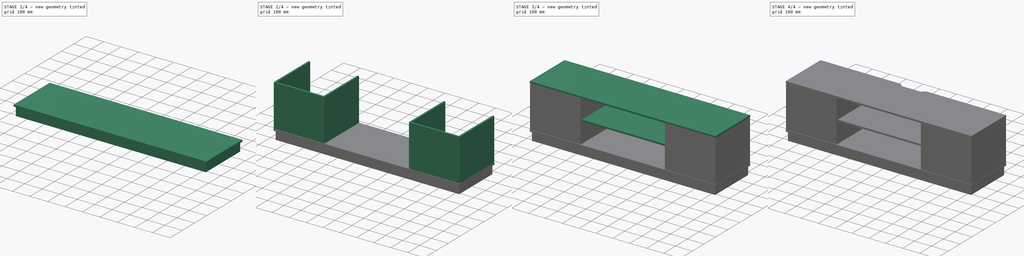
[diagram: build sequence overview — one tinted view per stage of 4, left to right]
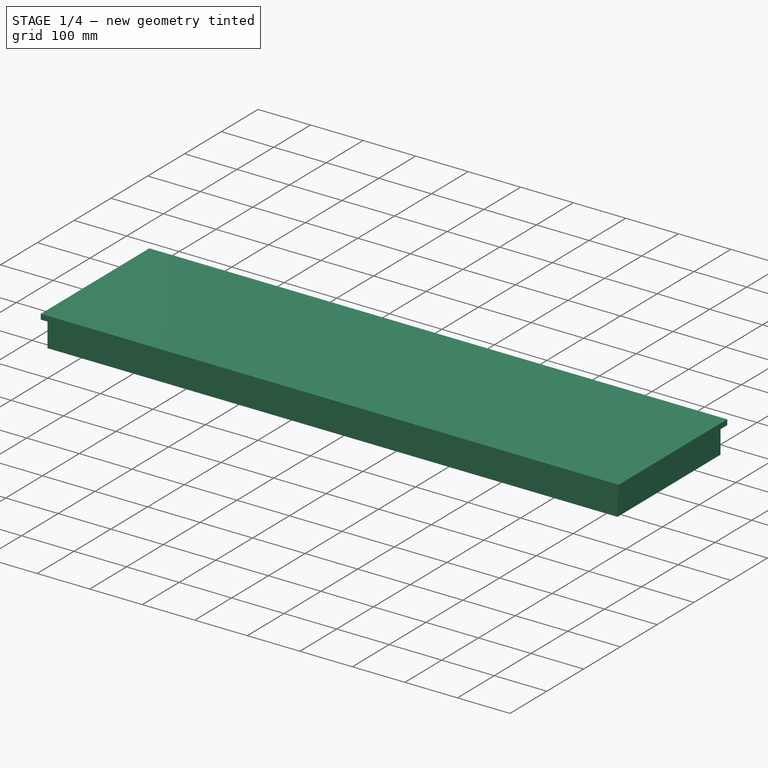
[diagram: stage 1 of 4 — iso view after this stage's code; geometry added in this stage tinted green]
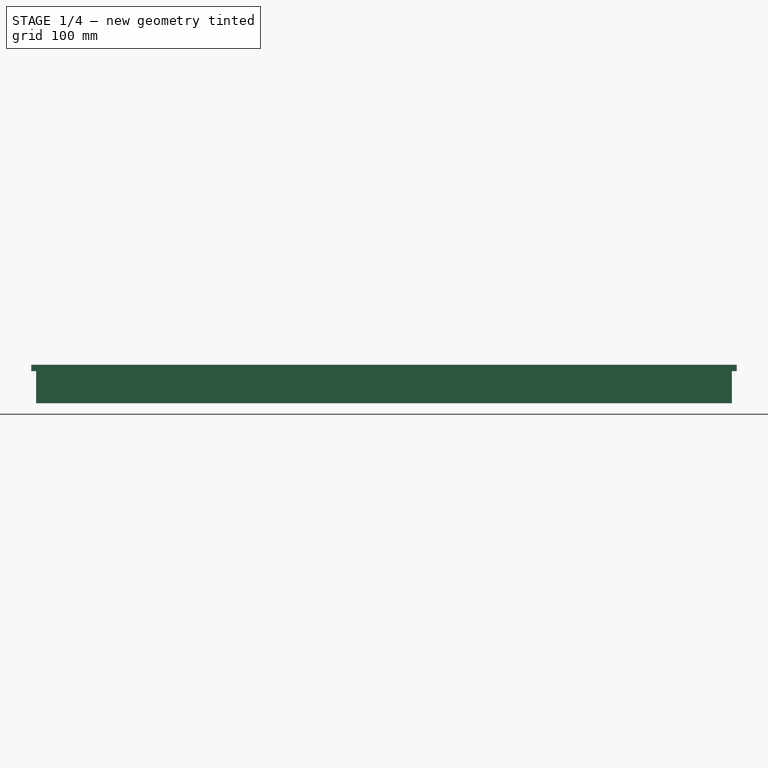
[diagram: stage 1 of 4 — front view after this stage's code; geometry added in this stage tinted green]
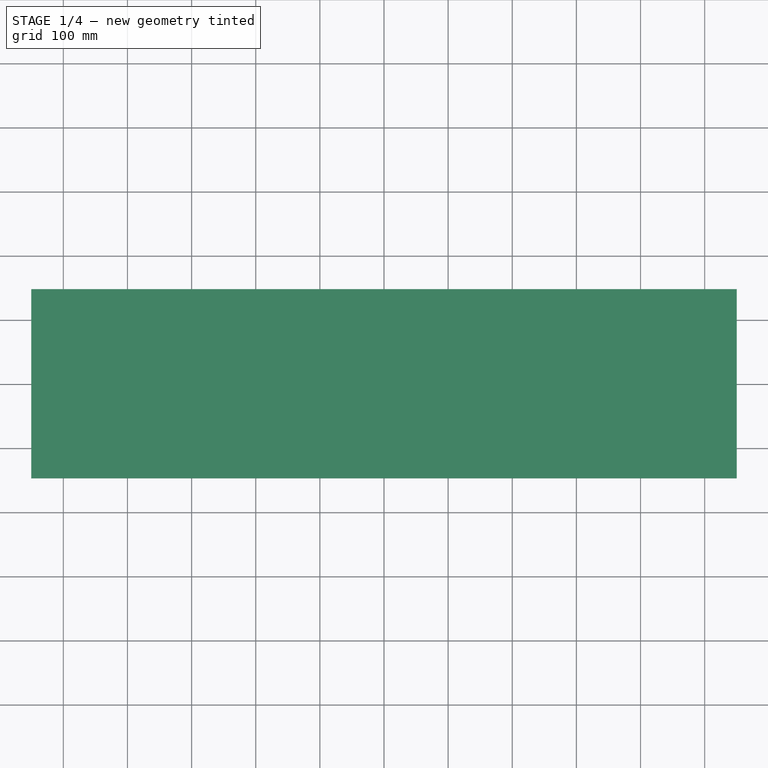
[diagram: stage 1 of 4 — top view after this stage's code; geometry added in this stage tinted green]
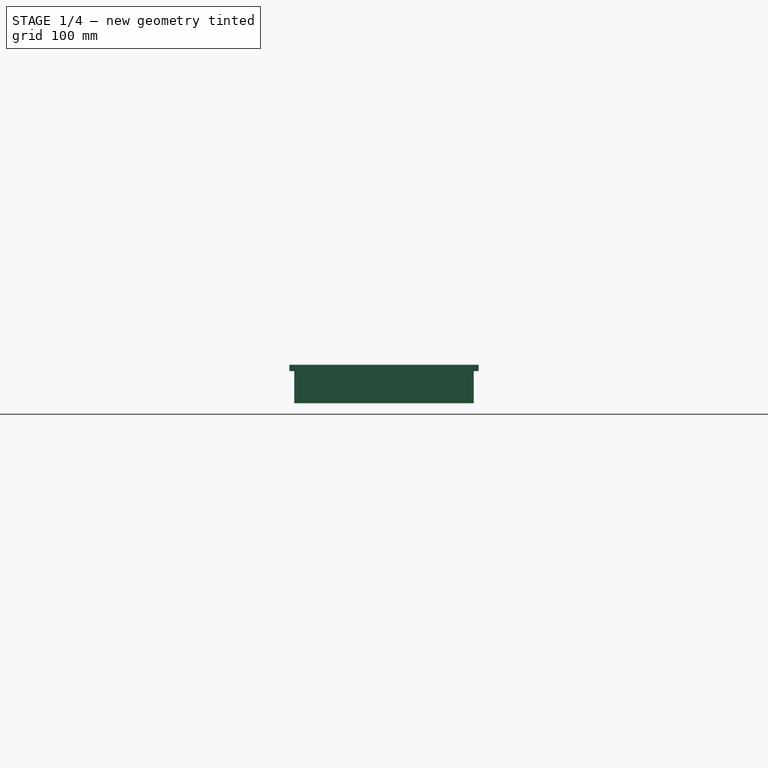
[diagram: stage 1 of 4 — right view after this stage's code; geometry added in this stage tinted green]
FCSTD DOCUMENT  (FreeCAD 1.0R39109 (Git))
Label: tvboard
License: All rights reserved
LicenseURL: https://en.wikipedia.org/wiki/All_rights_reserved
objects: Sketcher::SketchObject×9, PartDesign::Pad×8, PartDesign::Plane×1, PartDesign::Pocket×1, PartDesign::Body×1, Part::FeaturePython×1, App::Part×1
note: 48 computed .brp shape members not serialized (recipe doc carries the construction recipe); baked Part::Feature solids carry a one-line shape summary decoded from their .brp

FEATURE [Sketcher::SketchObject] Sketch
  ArcFitTolerance = 1e-06
  AttachmentSupport = -> [XY_Plane]
  FullyConstrained = true
  MakeInternals = false
  MapMode = 5
  sketch-geometry (5):
    g0: LineSegment StartX=-542.5 StartY=-140 StartZ=0 EndX=542.5 EndY=-140 EndZ=0
    g1: LineSegment StartX=542.5 StartY=-140 StartZ=0 EndX=542.5 EndY=140 EndZ=0
    g2: LineSegment StartX=542.5 StartY=140 StartZ=0 EndX=-542.5 EndY=140 EndZ=0
    g3: LineSegment StartX=-542.5 StartY=140 StartZ=0 EndX=-542.5 EndY=-140 EndZ=0
    g4: GeomPoint [constr] X=0 Y=0 Z=0
  constraints (12):
    c: Coincident(g0,g1)
    c: Coincident(g1,g2)
    c: Coincident(g2,g3)
    c: Coincident(g3,g0)
    c: Horizontal(g0)
    c: Horizontal(g2)
    c: Vertical(g1)
    c: Vertical(g3)
    c: Symmetric(g2,g0,g4)
    c: Distance(g1,g3) = 1085
    c: Distance(g0,g2) = 280
    c: Coincident(g4,g-1)
FEATURE [PartDesign::Pad] Pad
  Direction = (0,0,1)
  Length = 50
  Length2 = 10
  Profile = -> Sketch
  ReferenceAxis = -> Sketch [N_Axis]
  Refine = true
  Suppressed = false
  Type = 0
FEATURE [Sketcher::SketchObject] Sketch001
  ArcFitTolerance = 1e-06
  AttachmentSupport = -> [Pad]
  FullyConstrained = true
  MakeInternals = false
  MapMode = 5
  Placement = pos=(0,0,50) rot=(0,0,1;0rad)
  sketch-geometry (5):
    g0: LineSegment StartX=-550 StartY=-147.5 StartZ=0 EndX=550 EndY=-147.5 EndZ=0
    g1: LineSegment StartX=550 StartY=-147.5 StartZ=0 EndX=550 EndY=147.5 EndZ=0
    g2: LineSegment StartX=550 StartY=147.5 StartZ=0 EndX=-550 EndY=147.5 EndZ=0
    g3: LineSegment StartX=-550 StartY=147.5 StartZ=0 EndX=-550 EndY=-147.5 EndZ=0
    g4: GeomPoint [constr] X=0 Y=0 Z=0
  constraints (12):
    c: Coincident(g0,g1)
    c: Coincident(g1,g2)
    c: Coincident(g2,g3)
    c: Coincident(g3,g0)
    c: Horizontal(g0)
    c: Horizontal(g2)
    c: Vertical(g1)
    c: Vertical(g3)
    c: Symmetric(g2,g0,g4)
    c: Distance(g1,g3) = 1100
    c: Distance(g0,g2) = 295
    c: Coincident(g4,g-1)
FEATURE [PartDesign::Pad] Pad001
  BaseFeature = -> Pad
  Direction = (0,0,1)
  Length = 10
  Length2 = 10
  Profile = -> Sketch001
  ReferenceAxis = -> Sketch001 [N_Axis]
  Refine = true
  Suppressed = false
  Type = 0
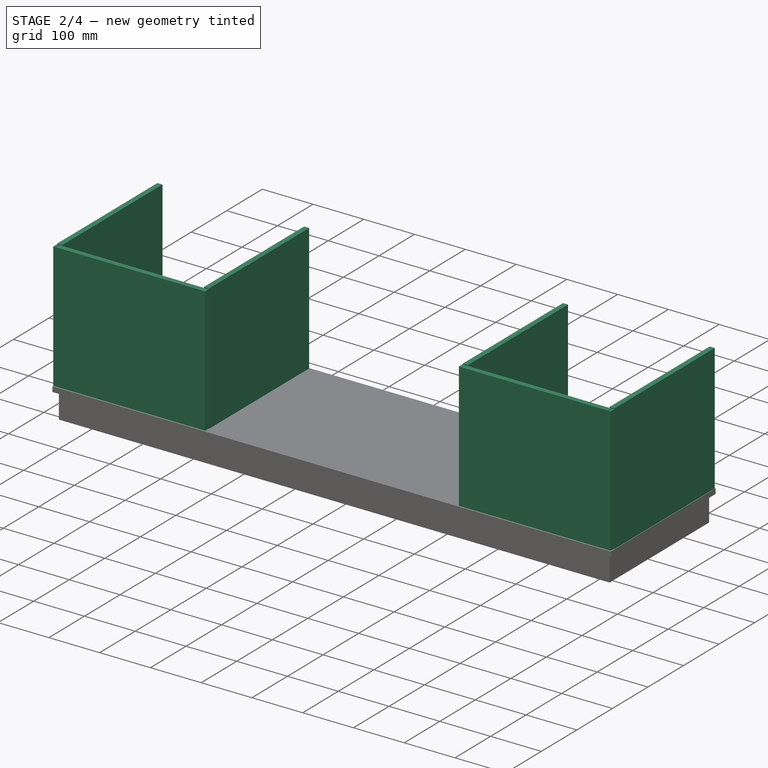
[diagram: stage 2 of 4 — iso view after this stage's code; geometry added in this stage tinted green]
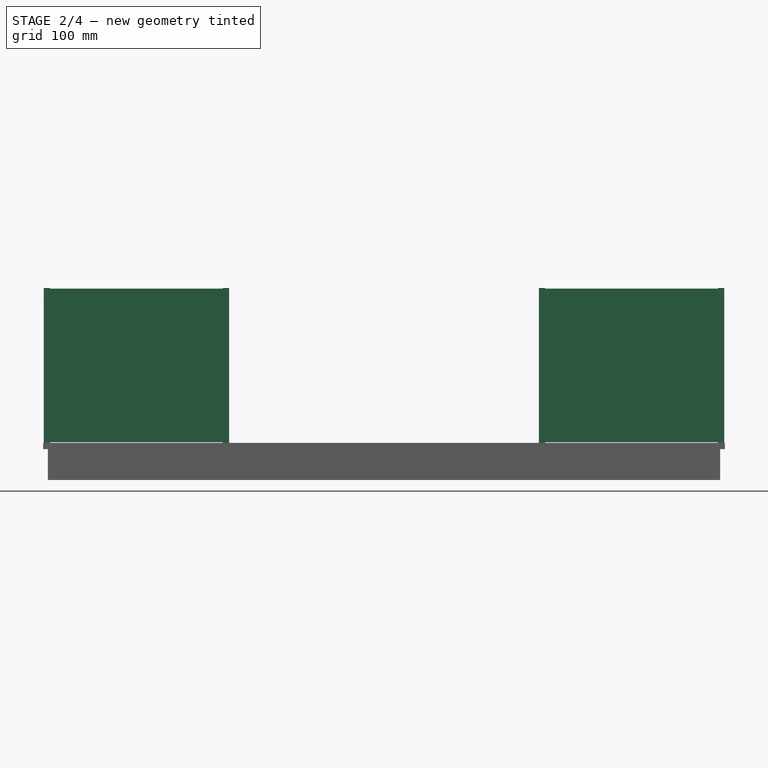
[diagram: stage 2 of 4 — front view after this stage's code; geometry added in this stage tinted green]
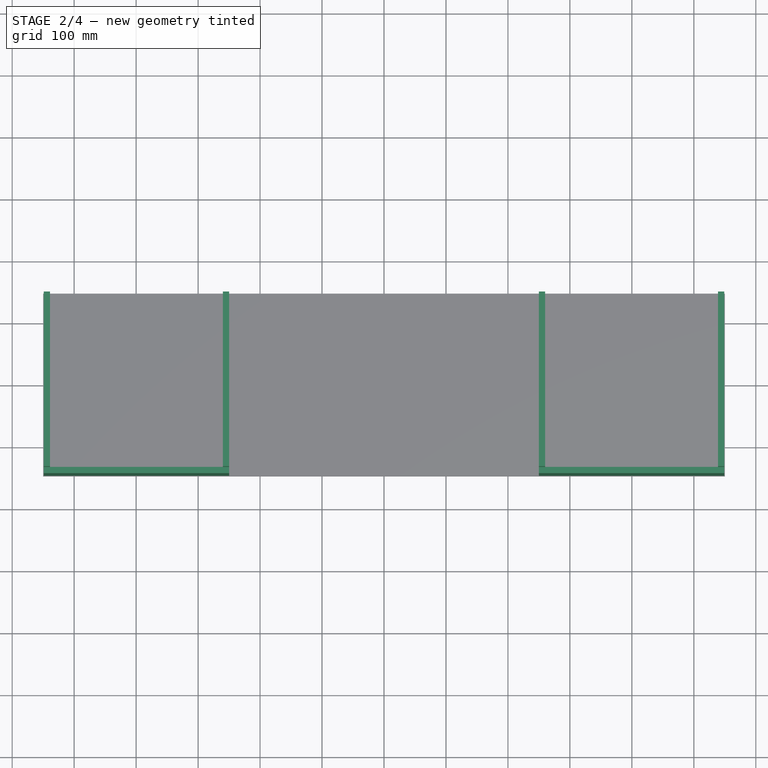
[diagram: stage 2 of 4 — top view after this stage's code; geometry added in this stage tinted green]
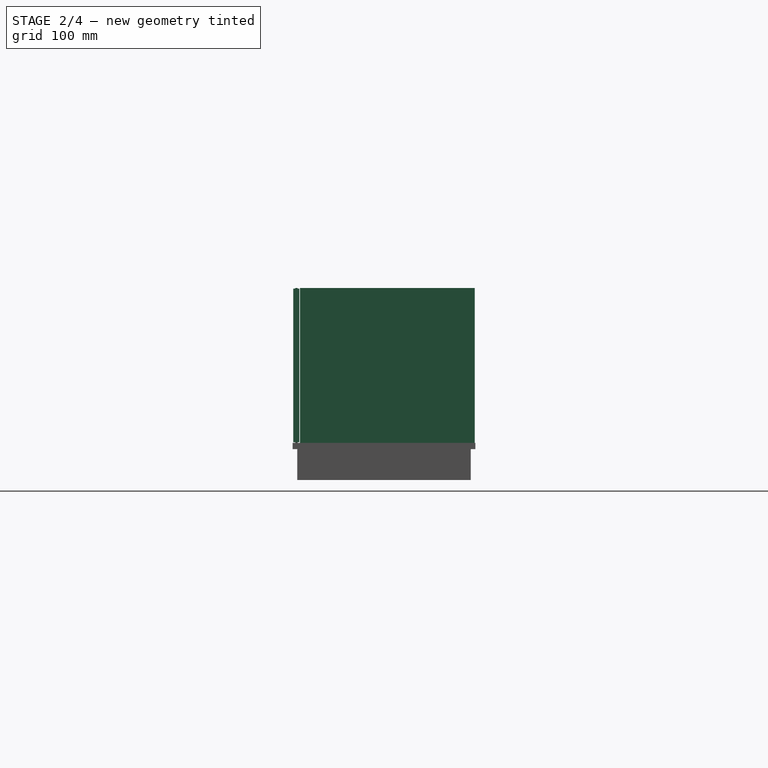
[diagram: stage 2 of 4 — right view after this stage's code; geometry added in this stage tinted green]
FEATURE [Sketcher::SketchObject] Sketch002
  ArcFitTolerance = 1e-06
  AttachmentSupport = -> [Pad001]
  ExternalGeometry = -> [Pad001]
  FullyConstrained = false
  MakeInternals = false
  MapMode = 5
  Placement = pos=(0,0,60) rot=(0,0,1;0rad)
  sketch-geometry (16):
    g0: LineSegment StartX=-549 StartY=146.5 StartZ=0 EndX=-549 EndY=-135.5 EndZ=0
    g1: LineSegment StartX=-549 StartY=-135.5 StartZ=0 EndX=-539 EndY=-135.5 EndZ=0
    g2: LineSegment StartX=-539 StartY=-135.5 StartZ=0 EndX=-539 EndY=146.5 EndZ=0
    g3: LineSegment StartX=-539 StartY=146.5 StartZ=0 EndX=-549 EndY=146.5 EndZ=0
    g4: LineSegment StartX=-260 StartY=146.5 StartZ=0 EndX=-260 EndY=-135.5 EndZ=0
    g5: LineSegment StartX=-260 StartY=-135.5 StartZ=0 EndX=-250 EndY=-135.5 EndZ=0
    g6: LineSegment StartX=-250 StartY=-135.5 StartZ=0 EndX=-250 EndY=146.5 EndZ=0
    g7: LineSegment StartX=-250 StartY=146.5 StartZ=0 EndX=-260 EndY=146.5 EndZ=0
    g8: LineSegment StartX=250 StartY=146.5 StartZ=0 EndX=250 EndY=-135.5 EndZ=0
    g9: LineSegment StartX=250 StartY=-135.5 StartZ=0 EndX=260 EndY=-135.5 EndZ=0
    g10: LineSegment StartX=260 StartY=-135.5 StartZ=0 EndX=260 EndY=146.5 EndZ=0
    g11: LineSegment StartX=260 StartY=146.5 StartZ=0 EndX=250 EndY=146.5 EndZ=0
    g12: LineSegment StartX=549 StartY=146.5 StartZ=0 EndX=549 EndY=-135.5 EndZ=0
    g13: LineSegment StartX=549 StartY=-135.5 StartZ=0 EndX=539 EndY=-135.5 EndZ=0
    g14: LineSegment StartX=539 StartY=-135.5 StartZ=0 EndX=539 EndY=146.5 EndZ=0
    g15: LineSegment StartX=539 StartY=146.5 StartZ=0 EndX=549 EndY=146.5 EndZ=0
  constraints (43):
    c: Coincident(g0,g1)
    c: Coincident(g1,g2)
    c: Coincident(g2,g3)
    c: Coincident(g3,g0)
    c: Vertical(g0)
    c: Vertical(g2)
    c: Horizontal(g1)
    c: Horizontal(g3)
    c: DistanceY(g0,g-4) = 1
    c: DistanceX(g-4,g0) = 1
    c: DistanceX(g3,g3) = 10
    c: DistanceY(g-3,g1) = 12
    c: Coincident(g4,g5)
    c: Coincident(g5,g6)
    c: Coincident(g6,g7)
    c: Coincident(g7,g4)
    c: Vertical(g4)
    c: Vertical(g6)
    c: Horizontal(g5)
    c: Horizontal(g7)
    c: Coincident(g8,g9)
    c: Coincident(g9,g10)
    c: Coincident(g10,g11)
    c: Coincident(g11,g8)
    c: Vertical(g8)
    c: Vertical(g10)
    c: Horizontal(g9)
    c: Horizontal(g11)
    c: Symmetric(g5,g8,g-2)
    c: DistanceX(g5,g8) = 500
    c: Equal(g7,g11)
    c: Equal(g11,g3)
    c: Horizontal(g4,g8)
    c: Horizontal(g8,g2)
    c: Horizontal(g4,g1)
    c: Coincident(g12,g13)
    c: Coincident(g13,g14)
    c: Coincident(g14,g15)
    c: Coincident(g15,g12)
    c: Vertical(g12)
    c: Vertical(g14)
    c: Horizontal(g13)
    c: Horizontal(g15)
FEATURE [PartDesign::Pad] Pad002
  BaseFeature = -> Pad001
  Direction = (0,0,1)
  Length = 250
  Length2 = 10
  Profile = -> Sketch002
  ReferenceAxis = -> Sketch002 [N_Axis]
  Refine = true
  Suppressed = false
  Type = 0
FEATURE [PartDesign::Plane] DatumPlane
  AttachmentOffset = pos=(0,0,1) rot=(0,0,1;0rad)
  AttachmentSupport = -> [Pad002]
  Length = 1213.93
  MapMode = 5
  Placement = pos=(0,0,61) rot=(0,0,1;0rad)
  ResizeMode = 0
  Width = 408.93
FEATURE [Sketcher::SketchObject] Sketch003
  ArcFitTolerance = 1e-06
  AttachmentSupport = -> [Pad002]
  ExternalGeometry = -> [Pad002]
  FullyConstrained = false
  MakeInternals = false
  MapMode = 5
  Placement = pos=(0,0,60) rot=(0,0,1;0rad)
  sketch-geometry (5):
    g0: Circle CenterX=544 CenterY=-141.5 CenterZ=0 NormalX=0 NormalY=0 NormalZ=1 AngleXU=0 Radius=2
    g1: LineSegment [constr] StartX=549 StartY=-135.5 StartZ=0 EndX=549 EndY=-147.5 EndZ=0
    g2: GeomPoint X=549 Y=-141.5 Z=0
    g3: GeomPoint X=544 Y=-135.5 Z=0
    g4: Circle CenterX=-544 CenterY=-141.5 CenterZ=0 NormalX=0 NormalY=0 NormalZ=1 AngleXU=0 Radius=2
  constraints (9):
    c: Coincident(g1,g-4)
    c: PointOnObject(g1,g-3)
    c: Vertical(g1)
    c: Symmetric(g1,g1,g2)
    c: Horizontal(g2,g0)
    c: Symmetric(g-4,g1,g3)
    c: Vertical(g3,g0)
    c: Radius(g0) = 2
    c: Radius(g4) = 2
FEATURE [PartDesign::Pad] Pad003
  BaseFeature = -> Pad002
  Direction = (0,0,1)
  Length = 250
  Length2 = 10
  Profile = -> Sketch003
  ReferenceAxis = -> Sketch003 [N_Axis]
  Refine = true
  Suppressed = false
  Type = 0
FEATURE [Sketcher::SketchObject] Sketch004
  ArcFitTolerance = 1e-06
  AttachmentSupport = -> [DatumPlane]
  ExternalGeometry = -> [Pad003]
  FullyConstrained = false
  MakeInternals = false
  MapMode = 5
  Placement = pos=(0,0,61) rot=(0,0,1;0rad)
  sketch-geometry (8):
    g0: LineSegment StartX=-549 StartY=-136.5 StartZ=0 EndX=-549 EndY=-146.5 EndZ=0
    g1: LineSegment StartX=-549 StartY=-146.5 StartZ=0 EndX=-250 EndY=-146.5 EndZ=0
    g2: LineSegment StartX=-250 StartY=-146.5 StartZ=0 EndX=-250 EndY=-136.5 EndZ=0
    g3: LineSegment StartX=-250 StartY=-136.5 StartZ=0 EndX=-549 EndY=-136.5 EndZ=0
    g4: LineSegment StartX=549 StartY=-136.5 StartZ=0 EndX=549 EndY=-146.5 EndZ=0
    g5: LineSegment StartX=549 StartY=-146.5 StartZ=0 EndX=250 EndY=-146.5 EndZ=0
    g6: LineSegment StartX=250 StartY=-146.5 StartZ=0 EndX=250 EndY=-136.5 EndZ=0
    g7: LineSegment StartX=250 StartY=-136.5 StartZ=0 EndX=549 EndY=-136.5 EndZ=0
  constraints (20):
    c: Coincident(g0,g1)
    c: Coincident(g1,g2)
    c: Coincident(g2,g3)
    c: Coincident(g3,g0)
    c: Vertical(g0)
    c: Vertical(g2)
    c: Horizontal(g1)
    c: Horizontal(g3)
    c: Vertical(g2,g-5)
    c: Vertical(g0,g-3)
    c: DistanceY(g-4,g0) = 1
    c: DistanceY(g0,g0) = 10
    c: Coincident(g4,g5)
    c: Coincident(g5,g6)
    c: Coincident(g6,g7)
    c: Coincident(g7,g4)
    c: Vertical(g4)
    c: Vertical(g6)
    c: Horizontal(g5)
    c: Horizontal(g7)
FEATURE [PartDesign::Pad] Pad004
  BaseFeature = -> Pad003
  Direction = (0,0,1)
  Length = 248
  Length2 = 10
  Profile = -> Sketch004
  ReferenceAxis = -> Sketch004 [N_Axis]
  Refine = true
  Suppressed = false
  Type = 0
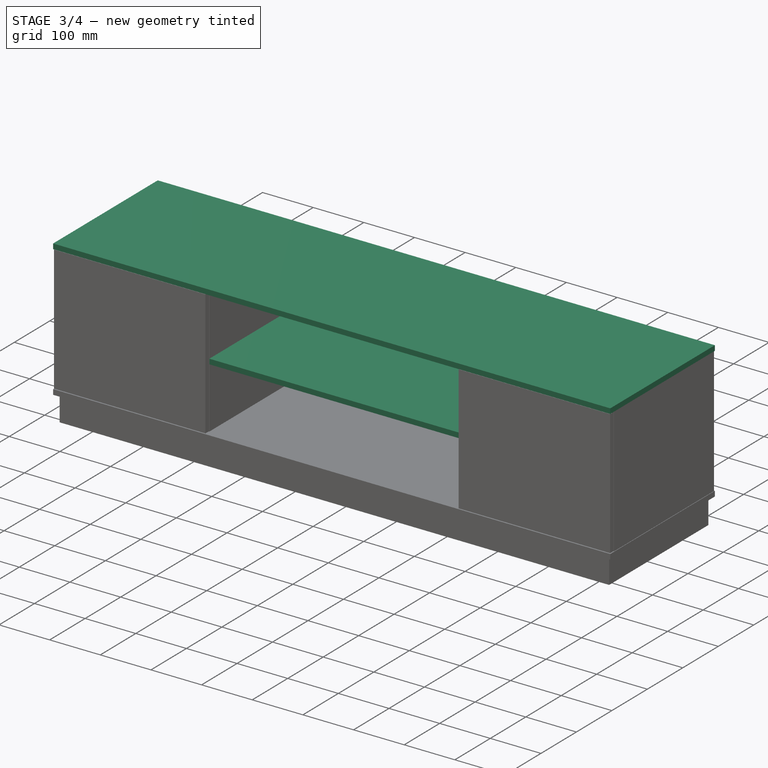
[diagram: stage 3 of 4 — iso view after this stage's code; geometry added in this stage tinted green]
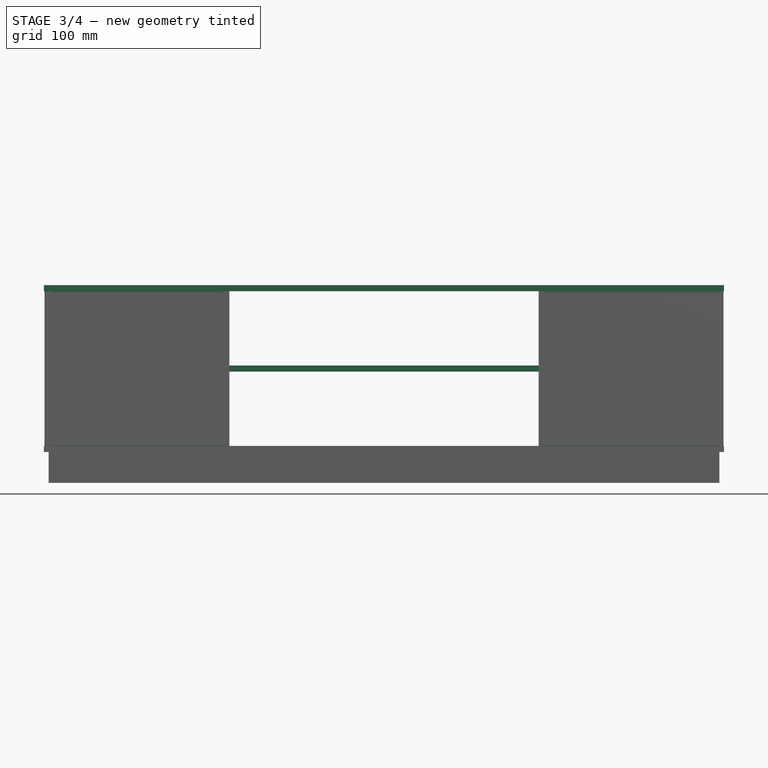
[diagram: stage 3 of 4 — front view after this stage's code; geometry added in this stage tinted green]
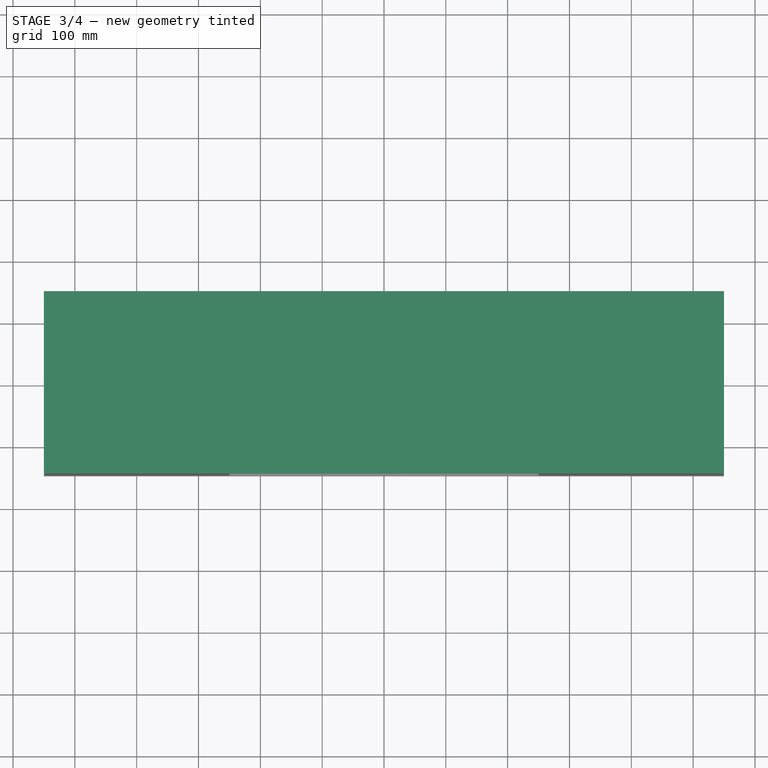
[diagram: stage 3 of 4 — top view after this stage's code; geometry added in this stage tinted green]
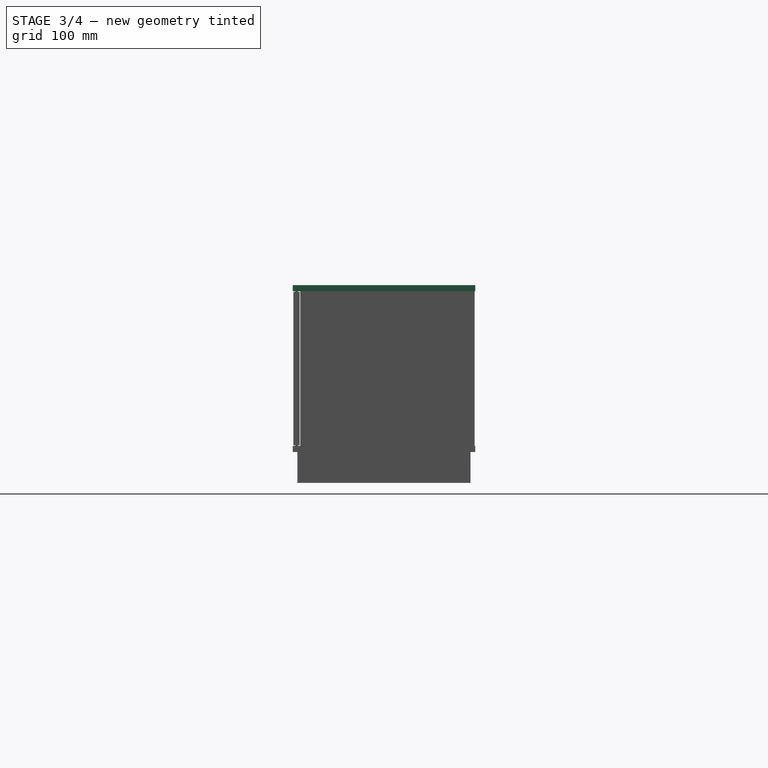
[diagram: stage 3 of 4 — right view after this stage's code; geometry added in this stage tinted green]
FEATURE [Sketcher::SketchObject] Sketch005
  ArcFitTolerance = 1e-06
  AttachmentSupport = -> [Pad004]
  ExternalGeometry = -> [Pad004]
  FullyConstrained = true
  MakeInternals = false
  MapMode = 5
  Placement = pos=(0,-135.5,0) rot=(1,0,0;1.5708rad)
  sketch-geometry (5):
    g0: LineSegment StartX=-250 StartY=190 StartZ=0 EndX=-250 EndY=180 EndZ=0
    g1: LineSegment StartX=-250 StartY=180 StartZ=0 EndX=250 EndY=180 EndZ=0
    g2: LineSegment StartX=250 StartY=180 StartZ=0 EndX=250 EndY=190 EndZ=0
    g3: LineSegment StartX=250 StartY=190 StartZ=0 EndX=-250 EndY=190 EndZ=0
    g4: GeomPoint X=-250 Y=185 Z=0
  constraints (12):
    c: Coincident(g0,g1)
    c: Coincident(g1,g2)
    c: Coincident(g2,g3)
    c: Coincident(g3,g0)
    c: Vertical(g0)
    c: Vertical(g2)
    c: Horizontal(g1)
    c: Horizontal(g3)
    c: PointOnObject(g1,g-4)
    c: DistanceY(g2,g2) = 10
    c: Symmetric(g-3,g-3,g4)
    c: Symmetric(g0,g0,g4)
FEATURE [PartDesign::Pad] Pad005
  BaseFeature = -> Pad004
  Direction = (0,-1,2e-16)
  Length = 275
  Length2 = 10
  Profile = -> Sketch005
  ReferenceAxis = -> Sketch005 [N_Axis]
  Reversed = true
  Suppressed = false
  Type = 0
FEATURE [Sketcher::SketchObject] Sketch006
  ArcFitTolerance = 1e-06
  AttachmentSupport = -> [Pad005]
  ExternalGeometry = -> [Pad005]
  FullyConstrained = false
  MakeInternals = false
  MapMode = 5
  Placement = pos=(0,0,60) rot=(0,0,1;0rad)
  sketch-geometry (8):
    g0: LineSegment StartX=-539 StartY=146.5 StartZ=0 EndX=-539 EndY=136.5 EndZ=0
    g1: LineSegment StartX=-539 StartY=136.5 StartZ=0 EndX=-260 EndY=136.5 EndZ=0
    g2: LineSegment StartX=-260 StartY=136.5 StartZ=0 EndX=-260 EndY=146.5 EndZ=0
    g3: LineSegment StartX=-260 StartY=146.5 StartZ=0 EndX=-539 EndY=146.5 EndZ=0
    g4: LineSegment StartX=539 StartY=146.5 StartZ=0 EndX=539 EndY=136.5 EndZ=0
    g5: LineSegment StartX=539 StartY=136.5 StartZ=0 EndX=260 EndY=136.5 EndZ=0
    g6: LineSegment StartX=260 StartY=136.5 StartZ=0 EndX=260 EndY=146.5 EndZ=0
    g7: LineSegment StartX=260 StartY=146.5 StartZ=0 EndX=539 EndY=146.5 EndZ=0
  constraints (19):
    c: Coincident(g0,g1)
    c: Coincident(g1,g2)
    c: Coincident(g2,g3)
    c: Coincident(g3,g0)
    c: Vertical(g0)
    c: Vertical(g2)
    c: Horizontal(g1)
    c: Horizontal(g3)
    c: Coincident(g0,g-3)
    c: PointOnObject(g1,g-4)
    c: DistanceY(g2,g2) = 10
    c: Coincident(g4,g5)
    c: Coincident(g5,g6)
    c: Coincident(g6,g7)
    c: Coincident(g7,g4)
    c: Vertical(g4)
    c: Vertical(g6)
    c: Horizontal(g5)
    c: Horizontal(g7)
FEATURE [PartDesign::Pad] Pad006
  BaseFeature = -> Pad005
  Direction = (0,0,1)
  Length = 250
  Length2 = 10
  Profile = -> Sketch006
  ReferenceAxis = -> Sketch006 [N_Axis]
  Suppressed = false
  Type = 0
FEATURE [Sketcher::SketchObject] Sketch007
  ArcFitTolerance = 1e-06
  AttachmentSupport = -> [Pad006]
  ExternalGeometry = -> [Pad006]
  FullyConstrained = true
  MakeInternals = false
  MapMode = 5
  Placement = pos=(0,0,310) rot=(0,0,1;0rad)
  sketch-geometry (4):
    g0: LineSegment StartX=-550 StartY=147.5 StartZ=0 EndX=-550 EndY=-147.5 EndZ=0
    g1: LineSegment StartX=-550 StartY=-147.5 StartZ=0 EndX=550 EndY=-147.5 EndZ=0
    g2: LineSegment StartX=550 StartY=-147.5 StartZ=0 EndX=550 EndY=147.5 EndZ=0
    g3: LineSegment StartX=550 StartY=147.5 StartZ=0 EndX=-550 EndY=147.5 EndZ=0
  constraints (10):
    c: Coincident(g0,g1)
    c: Coincident(g1,g2)
    c: Coincident(g2,g3)
    c: Coincident(g3,g0)
    c: Vertical(g0)
    c: Vertical(g2)
    c: Horizontal(g1)
    c: Horizontal(g3)
    c: Coincident(g0,g-3)
    c: Coincident(g1,g-4)
FEATURE [PartDesign::Pad] Pad007
  BaseFeature = -> Pad006
  Direction = (0,0,1)
  Length = 10
  Length2 = 10
  Profile = -> Sketch007
  ReferenceAxis = -> Sketch007 [N_Axis]
  Suppressed = false
  Type = 0
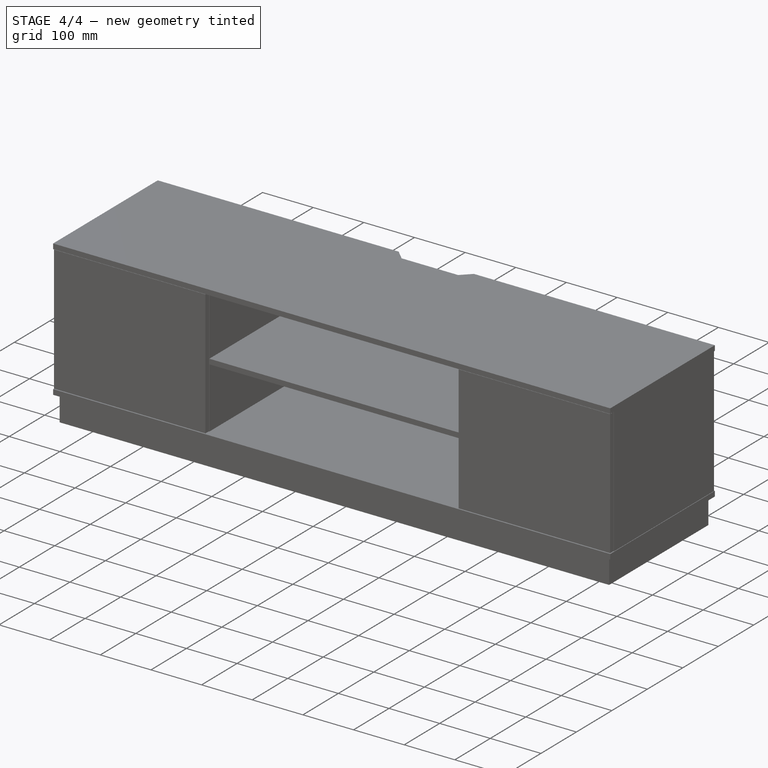
[diagram: stage 4 of 4 — iso view after this stage's code; geometry added in this stage tinted green]
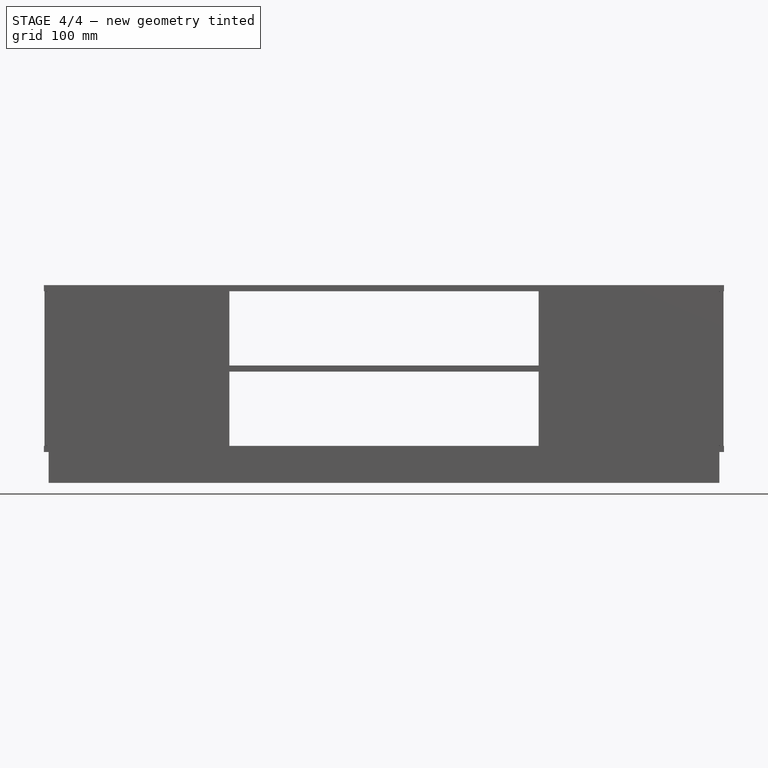
[diagram: stage 4 of 4 — front view after this stage's code; geometry added in this stage tinted green]
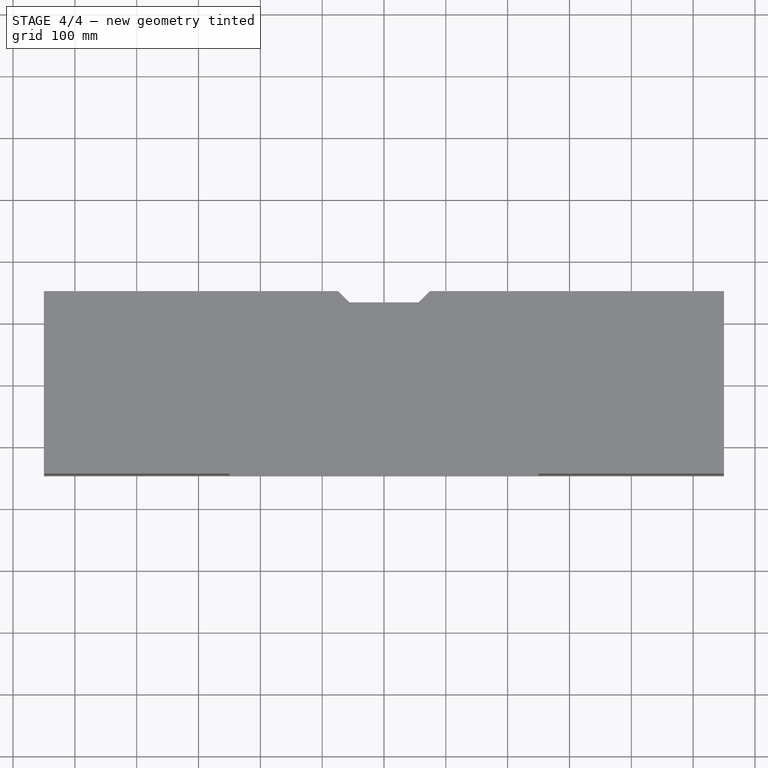
[diagram: stage 4 of 4 — top view after this stage's code; geometry added in this stage tinted green]
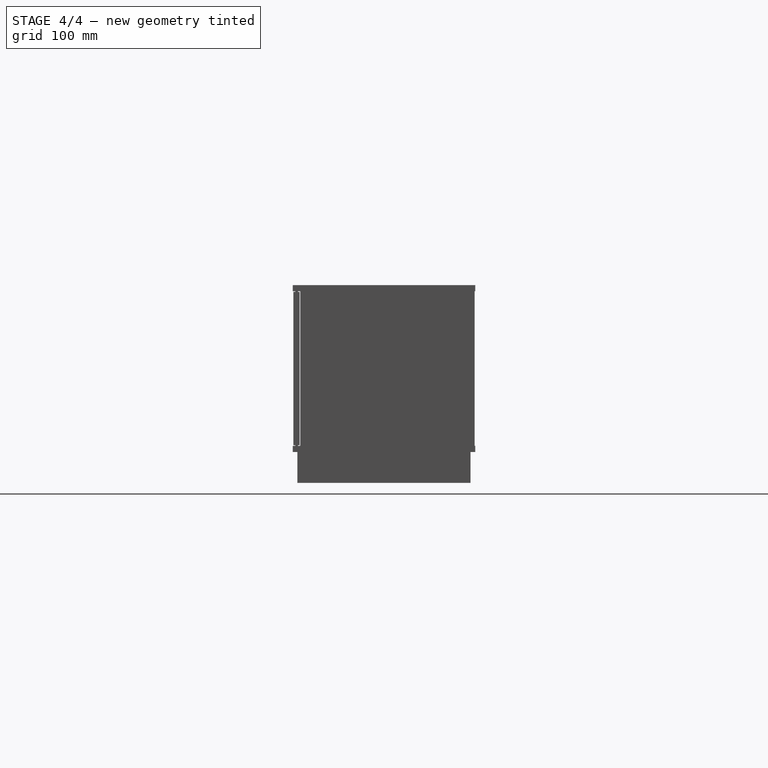
[diagram: stage 4 of 4 — right view after this stage's code; geometry added in this stage tinted green]
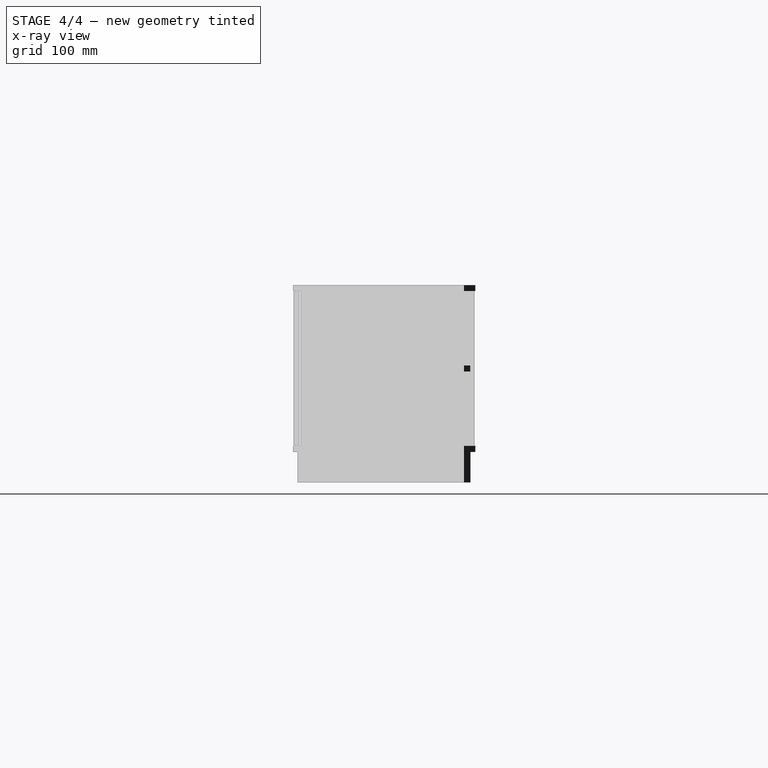
[diagram: stage 4 of 4 — x-ray composite at the right view; earlier geometry ghosted, this stage's added geometry solid]
FEATURE [Sketcher::SketchObject] Sketch008
  ArcFitTolerance = 1e-06
  AttachmentSupport = -> [Pad007]
  FullyConstrained = false
  MakeInternals = false
  MapMode = 5
  Placement = pos=(0,0,320) rot=(0,0,1;0rad)
  sketch-geometry (4):
    g0: LineSegment StartX=-99.9826 StartY=172.692 StartZ=0 EndX=99.9826 EndY=172.692 EndZ=0
    g1: LineSegment StartX=99.9826 StartY=172.692 StartZ=0 EndX=55.785 EndY=129.303 EndZ=0
    g2: LineSegment StartX=55.785 StartY=129.303 StartZ=0 EndX=-55.785 EndY=129.303 EndZ=0
    g3: LineSegment StartX=-55.785 StartY=129.303 StartZ=0 EndX=-99.9826 EndY=172.692 EndZ=0
  constraints (6):
    c: Coincident(g0,g1)
    c: Coincident(g1,g2)
    c: Coincident(g2,g3)
    c: Coincident(g3,g0)
    c: Symmetric(g0,g0,g-2)
    c: Symmetric(g1,g2,g-2)
FEATURE [PartDesign::Pocket] Pocket
  BaseFeature = -> Pad007
  Direction = (0,0,-1)
  Length = 5
  Length2 = 5
  Profile = -> Sketch008
  ReferenceAxis = -> Sketch008 [N_Axis]
  Refine = true
  Suppressed = false
  Type = 1
FEATURE [PartDesign::Body] Body
  AllowCompound = false
  Group = -> [Sketch,Pad,Sketch001,Pad001,Sketch002,Pad002,DatumPlane,Sketch003,Pad003,Sketch004,Pad004,Sketch005,Pad005,Sketch006,Pad006,Sketch007,Pad007,Sketch008,Pocket]
  Origin = -> Origin
  Tip = -> Pocket
FEATURE [Part::FeaturePython] Clone  label="tvboard_clone"  # Draft clone (typed FeaturePython)
  AttacherType = Attacher::AttachEngine3D
  Fuse = false
  Objects = -> [Body]
  Scale = (1,1,1)
FEATURE [App::Part] Part  label="tvboard"
  Group = -> [Clone]
  Origin = -> Origin001
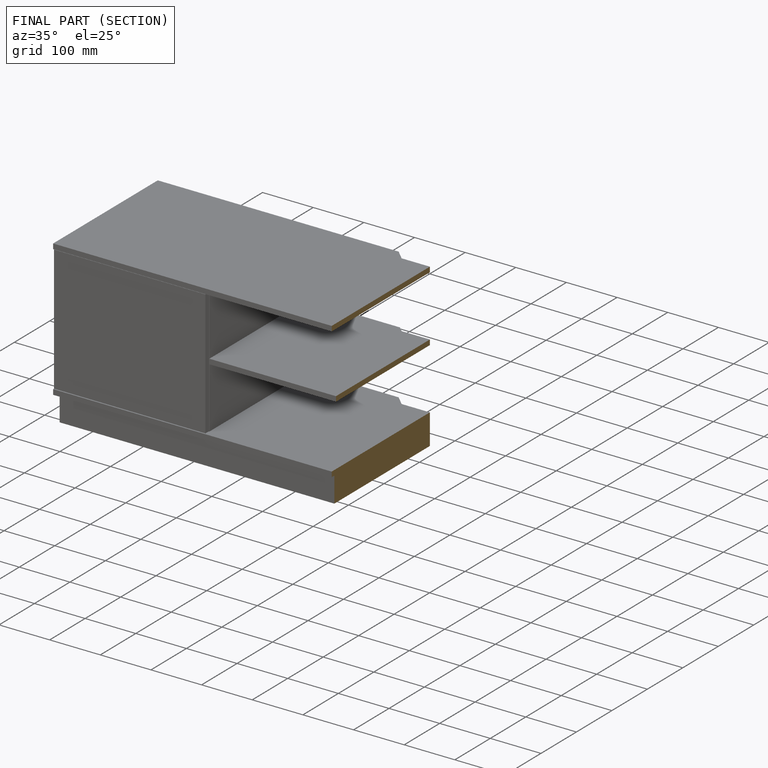
[diagram: finished part — half-section view (interior)]
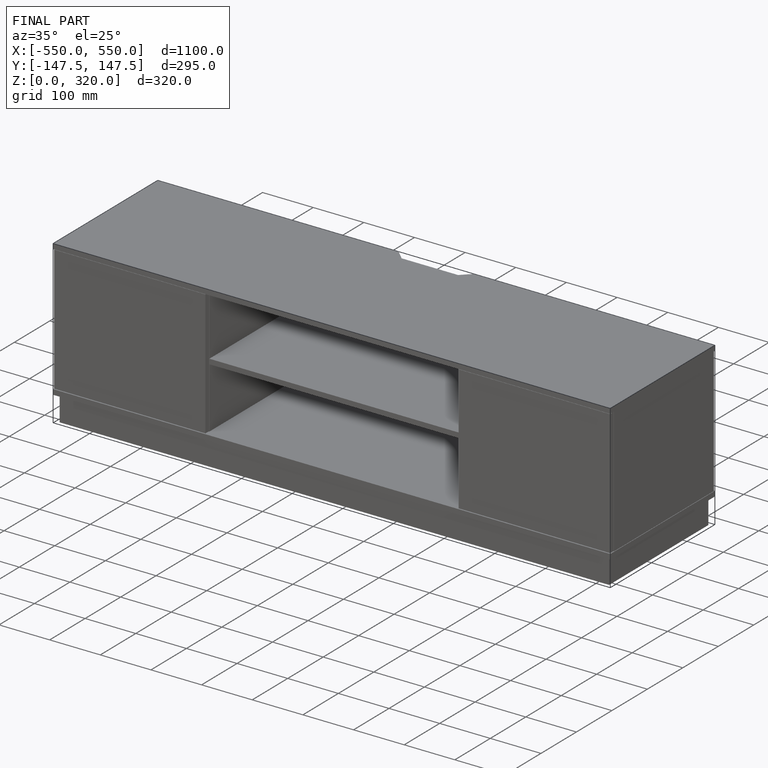
[diagram: finished part — iso view with bounding-box wireframe]
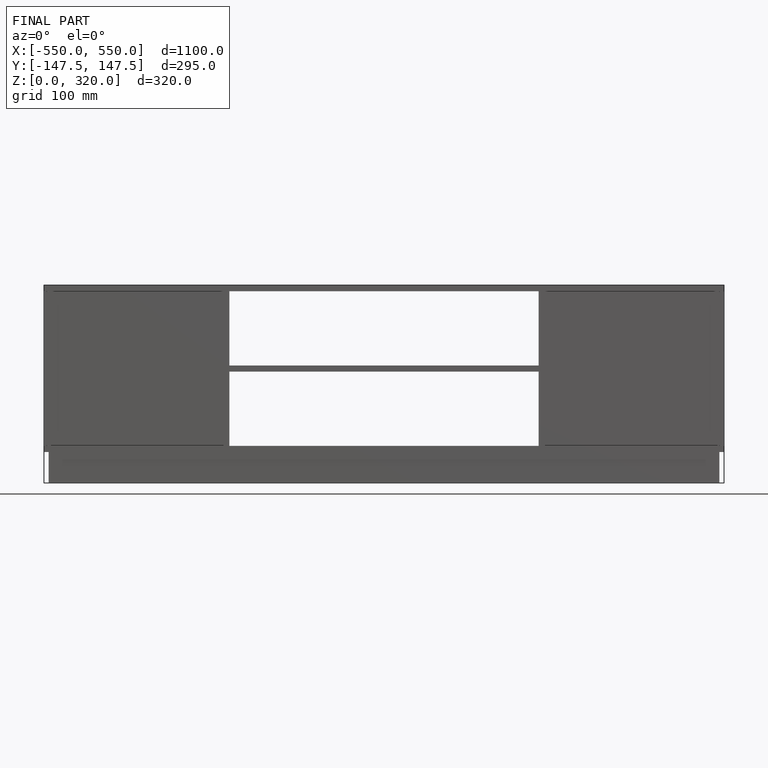
[diagram: finished part — front view with bounding-box wireframe]
